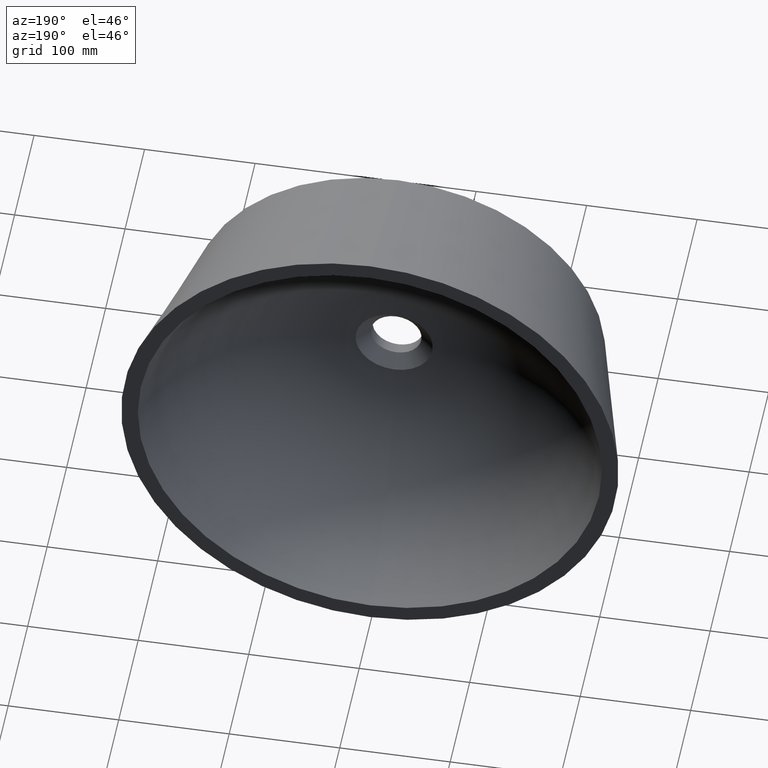
[diagram: clean part render]
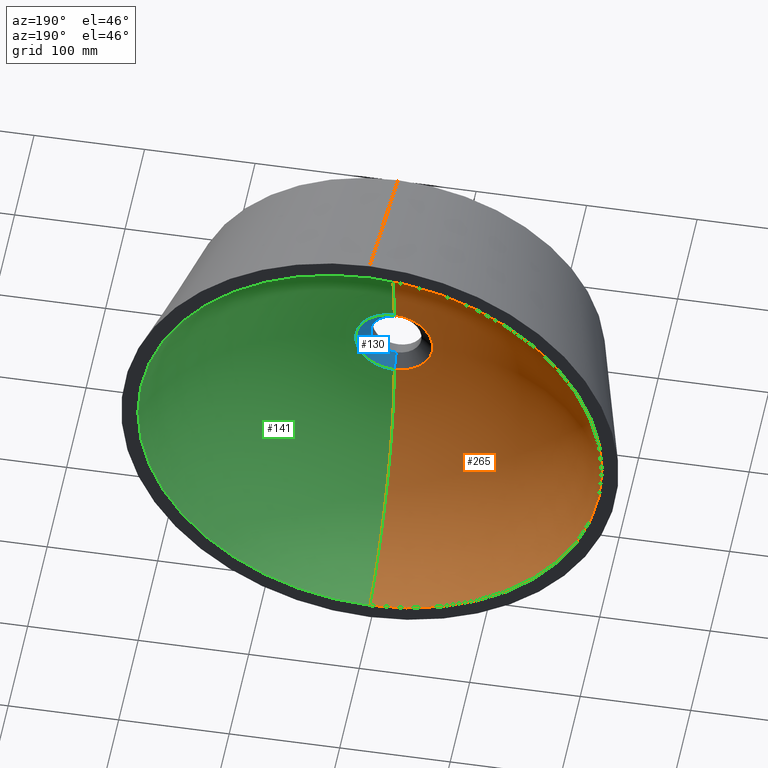
[diagram: same view with three faces highlighted in distinct colors, each labeled with its STEP entity id]
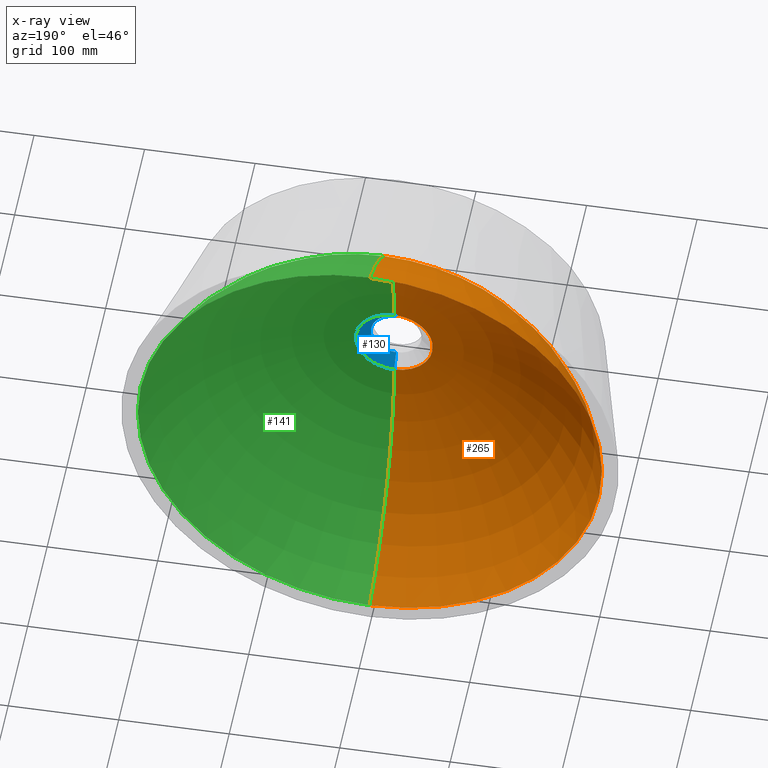
[diagram: x-ray of the same camera — body ghosted, the three highlighted faces saturated]
A machine part, auxiliary view with three faces highlighted in distinct colors.
The next image is the same camera in x-ray (body ghosted, the three faces saturated) — at least one of them is partly hidden behind the body in this view.
Their STEP definitions:

[orange] entity #265 — the highlighted toroidal blend (fillet) surface has major radius 34.9175 mm and minor (blend) radius 185.115 mm.
#3 = CARTESIAN_POINT ( 'NONE',  ( 0.0000000000000000000, 144.9999999999999700, -210.0000000000000300 ) ) ;
#12 = DIRECTION ( 'NONE',  ( -0.0000000000000000000, -1.000000000000000000, -0.0000000000000000000 ) ) ;
#14 = DIRECTION ( 'NONE',  ( 0.0000000000000000000, 0.0000000000000000000, 1.000000000000000000 ) ) ;
#22 = DIRECTION ( 'NONE',  ( 0.0000000000000000000, 0.0000000000000000000, -1.000000000000000000 ) ) ;
#24 = EDGE_CURVE ( 'NONE', #198, #112, #108, .T. ) ;
#50 = EDGE_CURVE ( 'NONE', #162, #112, #157, .T. ) ;
#52 = TOROIDAL_SURFACE ( 'NONE', #320, 34.91753592594194800, 185.1154769049753700 ) ;
#67 = AXIS2_PLACEMENT_3D ( 'NONE', #291, #318, #14 ) ;
#68 = EDGE_LOOP ( 'NONE', ( #189, #264, #244, #192 ) ) ;
#75 = VERTEX_POINT ( 'NONE', #197 ) ;
#82 = DIRECTION ( 'NONE',  ( -0.0000000000000000000, -1.000000000000000000, -0.0000000000000000000 ) ) ;
#84 = CIRCLE ( 'NONE', #178, 185.1154769049753700 ) ;
#108 = CIRCLE ( 'NONE', #67, 185.1154769049753700 ) ;
#112 = VERTEX_POINT ( 'NONE', #238 ) ;
#121 = DIRECTION ( 'NONE',  ( 0.0000000000000000000, 0.0000000000000000000, -1.000000000000000000 ) ) ;
#126 = EDGE_CURVE ( 'NONE', #75, #162, #84, .T. ) ;
#132 = CIRCLE ( 'NONE', #190, 210.0000000000000300 ) ;
#146 = CARTESIAN_POINT ( 'NONE',  ( 4.276164860581751400E-015, 205.1154769049753400, 34.91753592594194800 ) ) ;
#152 = DIRECTION ( 'NONE',  ( 0.0000000000000000000, 0.0000000000000000000, -1.000000000000000000 ) ) ;
#157 = CIRCLE ( 'NONE', #242, 34.91753592594196200 ) ;
#160 = DIRECTION ( 'NONE',  ( -0.0000000000000000000, -1.000000000000000000, -0.0000000000000000000 ) ) ;
#162 = VERTEX_POINT ( 'NONE', #293 ) ;
#165 = DIRECTION ( 'NONE',  ( 1.000000000000000000, 0.0000000000000000000, -1.224646799147353200E-016 ) ) ;
#178 = AXIS2_PLACEMENT_3D ( 'NONE', #146, #165, #323 ) ;
#189 = ORIENTED_EDGE ( 'NONE', *, *, #195, .F. ) ;
#190 = AXIS2_PLACEMENT_3D ( 'NONE', #211, #160, #22 ) ;
#192 = ORIENTED_EDGE ( 'NONE', *, *, #24, .F. ) ;
#195 = EDGE_CURVE ( 'NONE', #75, #198, #132, .T. ) ;
#197 = CARTESIAN_POINT ( 'NONE',  ( 2.571758278209442200E-014, 144.9999999999999700, 210.0000000000000300 ) ) ;
#198 = VERTEX_POINT ( 'NONE', #3 ) ;
#211 = CARTESIAN_POINT ( 'NONE',  ( 0.0000000000000000000, 144.9999999999999700, 0.0000000000000000000 ) ) ;
#220 = FACE_OUTER_BOUND ( 'NONE', #68, .T. ) ;
#238 = CARTESIAN_POINT ( 'NONE',  ( 0.0000000000000000000, 19.99999999999999300, -34.91753592594196200 ) ) ;
#242 = AXIS2_PLACEMENT_3D ( 'NONE', #316, #82, #121 ) ;
#244 = ORIENTED_EDGE ( 'NONE', *, *, #50, .T. ) ;
#264 = ORIENTED_EDGE ( 'NONE', *, *, #126, .T. ) ;
#265 = ADVANCED_FACE ( 'NONE', ( #220 ), #52, .F. ) ;
#291 = CARTESIAN_POINT ( 'NONE',  ( 0.0000000000000000000, 205.1154769049753400, -34.91753592594194800 ) ) ;
#293 = CARTESIAN_POINT ( 'NONE',  ( 1.499687382133808800E-014, 19.99999999999999300, 34.91753592594196200 ) ) ;
#316 = CARTESIAN_POINT ( 'NONE',  ( 0.0000000000000000000, 19.99999999999999300, 0.0000000000000000000 ) ) ;
#318 = DIRECTION ( 'NONE',  ( -1.000000000000000000, 0.0000000000000000000, 0.0000000000000000000 ) ) ;
#319 = CARTESIAN_POINT ( 'NONE',  ( 0.0000000000000000000, 205.1154769049753400, 0.0000000000000000000 ) ) ;
#320 = AXIS2_PLACEMENT_3D ( 'NONE', #319, #12, #152 ) ;
#323 = DIRECTION ( 'NONE',  ( -1.224646799147353200E-016, 0.0000000000000000000, -1.000000000000000000 ) ) ;

[blue] entity #130 — the highlighted conical surface has half-angle 50 deg.
#25 = CARTESIAN_POINT ( 'NONE',  ( 0.0000000000000000000, 9.999999999999992900, 0.0000000000000000000 ) ) ;
#30 = DIRECTION ( 'NONE',  ( -0.0000000000000000000, -1.000000000000000000, -0.0000000000000000000 ) ) ;
#45 = EDGE_CURVE ( 'NONE', #151, #162, #87, .T. ) ;
#48 = DIRECTION ( 'NONE',  ( 0.0000000000000000000, 1.000000000000000000, 0.0000000000000000000 ) ) ;
#69 = CARTESIAN_POINT ( 'NONE',  ( 2.816687638038912400E-015, 9.999999999999992900, -23.00000000000000000 ) ) ;
#74 = CARTESIAN_POINT ( 'NONE',  ( 0.0000000000000000000, 9.999999999999992900, -23.00000000000000000 ) ) ;
#80 = FACE_OUTER_BOUND ( 'NONE', #90, .T. ) ;
#87 = LINE ( 'NONE', #296, #299 ) ;
#90 = EDGE_LOOP ( 'NONE', ( #254, #136, #158, #95 ) ) ;
#91 = EDGE_CURVE ( 'NONE', #169, #151, #250, .T. ) ;
#94 = EDGE_CURVE ( 'NONE', #169, #112, #237, .T. ) ;
#95 = ORIENTED_EDGE ( 'NONE', *, *, #257, .F. ) ;
#98 = CARTESIAN_POINT ( 'NONE',  ( 0.0000000000000000000, 19.99999999999999300, 0.0000000000000000000 ) ) ;
#112 = VERTEX_POINT ( 'NONE', #238 ) ;
#125 = CONICAL_SURFACE ( 'NONE', #248, 23.00000000000000000, 0.8726646259971591000 ) ;
#130 = ADVANCED_FACE ( 'NONE', ( #80 ), #125, .F. ) ;
#135 = DIRECTION ( 'NONE',  ( -0.0000000000000000000, -1.000000000000000000, -0.0000000000000000000 ) ) ;
#136 = ORIENTED_EDGE ( 'NONE', *, *, #91, .T. ) ;
#138 = DIRECTION ( 'NONE',  ( 0.0000000000000000000, 0.0000000000000000000, -1.000000000000000000 ) ) ;
#144 = DIRECTION ( 'NONE',  ( 9.381338752702686400E-017, 0.6427876096865436900, -0.7660444431189743500 ) ) ;
#151 = VERTEX_POINT ( 'NONE', #163 ) ;
#158 = ORIENTED_EDGE ( 'NONE', *, *, #45, .T. ) ;
#162 = VERTEX_POINT ( 'NONE', #293 ) ;
#163 = CARTESIAN_POINT ( 'NONE',  ( 2.816687638038912400E-015, 9.999999999999992900, 23.00000000000000000 ) ) ;
#169 = VERTEX_POINT ( 'NONE', #74 ) ;
#196 = DIRECTION ( 'NONE',  ( 0.0000000000000000000, 0.0000000000000000000, -1.000000000000000000 ) ) ;
#209 = DIRECTION ( 'NONE',  ( 0.0000000000000000000, 0.0000000000000000000, 1.000000000000000000 ) ) ;
#224 = AXIS2_PLACEMENT_3D ( 'NONE', #306, #135, #196 ) ;
#228 = VECTOR ( 'NONE', #144, 999.9999999999998900 ) ;
#237 = LINE ( 'NONE', #69, #228 ) ;
#238 = CARTESIAN_POINT ( 'NONE',  ( 0.0000000000000000000, 19.99999999999999300, -34.91753592594196200 ) ) ;
#248 = AXIS2_PLACEMENT_3D ( 'NONE', #25, #48, #209 ) ;
#249 = CIRCLE ( 'NONE', #284, 34.91753592594196200 ) ;
#250 = CIRCLE ( 'NONE', #224, 23.00000000000000000 ) ;
#254 = ORIENTED_EDGE ( 'NONE', *, *, #94, .F. ) ;
#257 = EDGE_CURVE ( 'NONE', #112, #162, #249, .T. ) ;
#274 = DIRECTION ( 'NONE',  ( 0.0000000000000000000, 0.6427876096865436900, 0.7660444431189743500 ) ) ;
#284 = AXIS2_PLACEMENT_3D ( 'NONE', #98, #30, #138 ) ;
#293 = CARTESIAN_POINT ( 'NONE',  ( 1.499687382133808800E-014, 19.99999999999999300, 34.91753592594196200 ) ) ;
#296 = CARTESIAN_POINT ( 'NONE',  ( 0.0000000000000000000, 9.999999999999992900, 23.00000000000000000 ) ) ;
#299 = VECTOR ( 'NONE', #274, 999.9999999999998900 ) ;
#306 = CARTESIAN_POINT ( 'NONE',  ( 0.0000000000000000000, 9.999999999999992900, 0.0000000000000000000 ) ) ;

[green] entity #141 — the highlighted toroidal blend (fillet) surface has major radius 34.9175 mm and minor (blend) radius 185.115 mm.
#3 = CARTESIAN_POINT ( 'NONE',  ( 0.0000000000000000000, 144.9999999999999700, -210.0000000000000300 ) ) ;
#9 = CIRCLE ( 'NONE', #97, 210.0000000000000300 ) ;
#13 = DIRECTION ( 'NONE',  ( -0.0000000000000000000, -1.000000000000000000, -0.0000000000000000000 ) ) ;
#14 = DIRECTION ( 'NONE',  ( 0.0000000000000000000, 0.0000000000000000000, 1.000000000000000000 ) ) ;
#24 = EDGE_CURVE ( 'NONE', #198, #112, #108, .T. ) ;
#26 = EDGE_LOOP ( 'NONE', ( #182, #241, #324, #176 ) ) ;
#30 = DIRECTION ( 'NONE',  ( -0.0000000000000000000, -1.000000000000000000, -0.0000000000000000000 ) ) ;
#66 = DIRECTION ( 'NONE',  ( -0.0000000000000000000, -1.000000000000000000, -0.0000000000000000000 ) ) ;
#67 = AXIS2_PLACEMENT_3D ( 'NONE', #291, #318, #14 ) ;
#75 = VERTEX_POINT ( 'NONE', #197 ) ;
#84 = CIRCLE ( 'NONE', #178, 185.1154769049753700 ) ;
#97 = AXIS2_PLACEMENT_3D ( 'NONE', #290, #13, #331 ) ;
#98 = CARTESIAN_POINT ( 'NONE',  ( 0.0000000000000000000, 19.99999999999999300, 0.0000000000000000000 ) ) ;
#105 = FACE_OUTER_BOUND ( 'NONE', #26, .T. ) ;
#108 = CIRCLE ( 'NONE', #67, 185.1154769049753700 ) ;
#112 = VERTEX_POINT ( 'NONE', #238 ) ;
#126 = EDGE_CURVE ( 'NONE', #75, #162, #84, .T. ) ;
#138 = DIRECTION ( 'NONE',  ( 0.0000000000000000000, 0.0000000000000000000, -1.000000000000000000 ) ) ;
#141 = ADVANCED_FACE ( 'NONE', ( #105 ), #203, .F. ) ;
#146 = CARTESIAN_POINT ( 'NONE',  ( 4.276164860581751400E-015, 205.1154769049753400, 34.91753592594194800 ) ) ;
#162 = VERTEX_POINT ( 'NONE', #293 ) ;
#165 = DIRECTION ( 'NONE',  ( 1.000000000000000000, 0.0000000000000000000, -1.224646799147353200E-016 ) ) ;
#168 = CARTESIAN_POINT ( 'NONE',  ( 0.0000000000000000000, 205.1154769049753400, 0.0000000000000000000 ) ) ;
#176 = ORIENTED_EDGE ( 'NONE', *, *, #257, .T. ) ;
#178 = AXIS2_PLACEMENT_3D ( 'NONE', #146, #165, #323 ) ;
#182 = ORIENTED_EDGE ( 'NONE', *, *, #126, .F. ) ;
#197 = CARTESIAN_POINT ( 'NONE',  ( 2.571758278209442200E-014, 144.9999999999999700, 210.0000000000000300 ) ) ;
#198 = VERTEX_POINT ( 'NONE', #3 ) ;
#203 = TOROIDAL_SURFACE ( 'NONE', #219, 34.91753592594194800, 185.1154769049753700 ) ;
#219 = AXIS2_PLACEMENT_3D ( 'NONE', #168, #66, #266 ) ;
#238 = CARTESIAN_POINT ( 'NONE',  ( 0.0000000000000000000, 19.99999999999999300, -34.91753592594196200 ) ) ;
#241 = ORIENTED_EDGE ( 'NONE', *, *, #313, .F. ) ;
#249 = CIRCLE ( 'NONE', #284, 34.91753592594196200 ) ;
#257 = EDGE_CURVE ( 'NONE', #112, #162, #249, .T. ) ;
#266 = DIRECTION ( 'NONE',  ( 0.0000000000000000000, 0.0000000000000000000, -1.000000000000000000 ) ) ;
#284 = AXIS2_PLACEMENT_3D ( 'NONE', #98, #30, #138 ) ;
#290 = CARTESIAN_POINT ( 'NONE',  ( 0.0000000000000000000, 144.9999999999999700, 0.0000000000000000000 ) ) ;
#291 = CARTESIAN_POINT ( 'NONE',  ( 0.0000000000000000000, 205.1154769049753400, -34.91753592594194800 ) ) ;
#293 = CARTESIAN_POINT ( 'NONE',  ( 1.499687382133808800E-014, 19.99999999999999300, 34.91753592594196200 ) ) ;
#313 = EDGE_CURVE ( 'NONE', #198, #75, #9, .T. ) ;
#318 = DIRECTION ( 'NONE',  ( -1.000000000000000000, 0.0000000000000000000, 0.0000000000000000000 ) ) ;
#323 = DIRECTION ( 'NONE',  ( -1.224646799147353200E-016, 0.0000000000000000000, -1.000000000000000000 ) ) ;
#324 = ORIENTED_EDGE ( 'NONE', *, *, #24, .T. ) ;
#331 = DIRECTION ( 'NONE',  ( 0.0000000000000000000, 0.0000000000000000000, -1.000000000000000000 ) ) ;